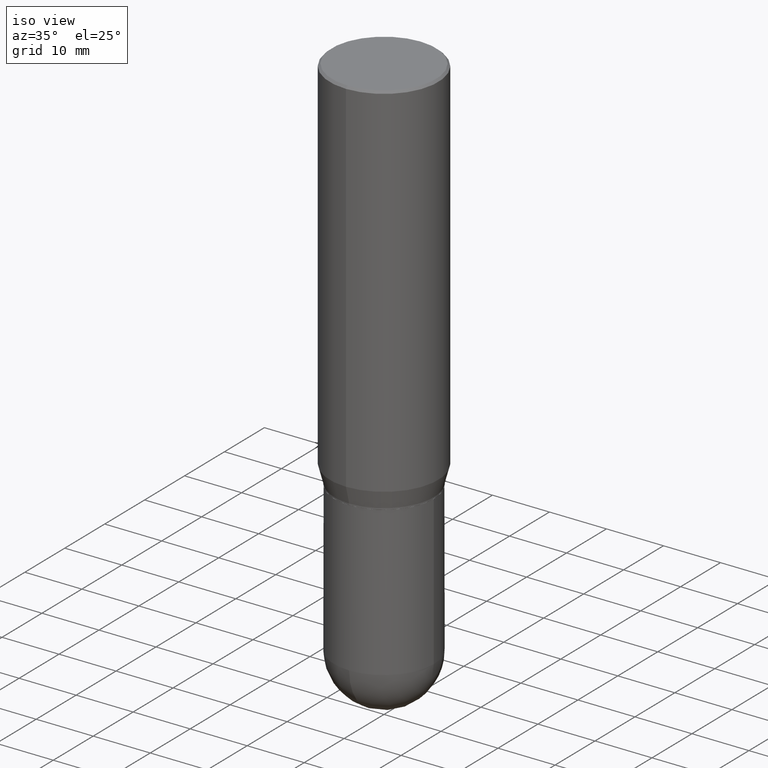
[diagram: clean part render]
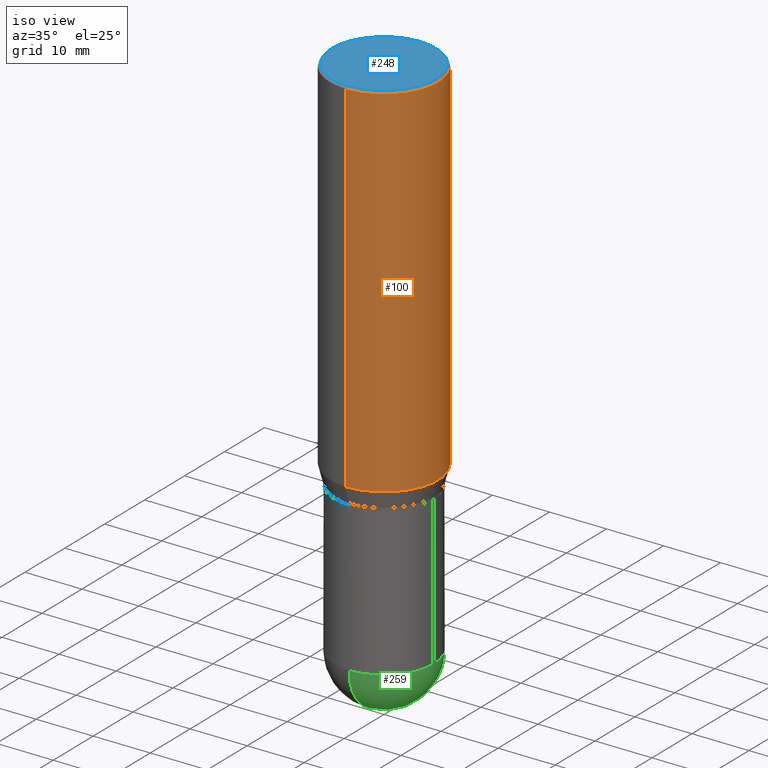
[diagram: same view with three faces highlighted in distinct colors, each labeled with its STEP entity id]
A machine part, iso view with three faces highlighted in distinct colors.
Their STEP definitions:

[orange] entity #100 — the highlighted cylindrical surface (partial cylindrical patch) has radius 9.525 mm, axis along (-0, 0, 1).
#3 = VERTEX_POINT ( 'NONE', #365 ) ;
#38 = VERTEX_POINT ( 'NONE', #349 ) ;
#49 = ORIENTED_EDGE ( 'NONE', *, *, #375, .F. ) ;
#62 = DIRECTION ( 'NONE',  ( -2.447249651675141421E-29, 3.488931066742028403E-15, 1.000000000000000000 ) ) ;
#96 = DIRECTION ( 'NONE',  ( -2.447249651675141421E-29, 3.488931066742028403E-15, 1.000000000000000000 ) ) ;
#98 = CARTESIAN_POINT ( 'NONE',  ( 2.664535259100437228E-15, 0.3749999999999998890, -0.01500000000000165437 ) ) ;
#100 = ADVANCED_FACE ( 'NONE', ( #358 ), #195, .T. ) ;
#107 = DIRECTION ( 'NONE',  ( -6.982962677686265922E-15, -1.000000000000000000, 3.488797541908735597E-15 ) ) ;
#122 = CARTESIAN_POINT ( 'NONE',  ( 6.114143462916222679E-29, -8.716652614368324829E-15, -2.498373412263474425 ) ) ;
#137 = AXIS2_PLACEMENT_3D ( 'NONE', #461, #185, #107 ) ;
#145 = EDGE_CURVE ( 'NONE', #3, #38, #496, .T. ) ;
#155 = CARTESIAN_POINT ( 'NONE',  ( 0.000000000000000000, 0.000000000000000000, 0.000000000000000000 ) ) ;
#159 = EDGE_LOOP ( 'NONE', ( #473, #191, #49, #512 ) ) ;
#160 = AXIS2_PLACEMENT_3D ( 'NONE', #122, #468, #360 ) ;
#176 = LINE ( 'NONE', #444, #309 ) ;
#185 = DIRECTION ( 'NONE',  ( -2.447249651675141421E-29, 3.488931066742028009E-15, 1.000000000000000000 ) ) ;
#187 = CARTESIAN_POINT ( 'NONE',  ( -2.618611004132350016E-15, -0.3750000000000000555, 1.308349150028260553E-15 ) ) ;
#191 = ORIENTED_EDGE ( 'NONE', *, *, #237, .T. ) ;
#195 = CYLINDRICAL_SURFACE ( 'NONE', #505, 0.3750000000000000555 ) ;
#237 = EDGE_CURVE ( 'NONE', #38, #321, #176, .T. ) ;
#239 = DIRECTION ( 'NONE',  ( -2.447249651675141421E-29, 3.488931066742028009E-15, 1.000000000000000000 ) ) ;
#249 = VERTEX_POINT ( 'NONE', #256 ) ;
#256 = CARTESIAN_POINT ( 'NONE',  ( -2.618611004132349622E-15, -0.3750000000000001110, -0.01499999999999903667 ) ) ;
#266 = LINE ( 'NONE', #187, #329 ) ;
#309 = VECTOR ( 'NONE', #96, 39.37007874015748143 ) ;
#321 = VERTEX_POINT ( 'NONE', #98 ) ;
#329 = VECTOR ( 'NONE', #62, 39.37007874015748143 ) ;
#349 = CARTESIAN_POINT ( 'NONE',  ( 2.664535259100436439E-15, 0.3749999999999912847, -2.498373412263475757 ) ) ;
#358 = FACE_OUTER_BOUND ( 'NONE', #159, .T. ) ;
#360 = DIRECTION ( 'NONE',  ( -6.982962677686265922E-15, -1.000000000000000000, 2.913971193241880372E-15 ) ) ;
#365 = CARTESIAN_POINT ( 'NONE',  ( -2.618611004132288880E-15, -0.3750000000000087708, -2.498373412263473536 ) ) ;
#375 = EDGE_CURVE ( 'NONE', #249, #321, #450, .T. ) ;
#444 = CARTESIAN_POINT ( 'NONE',  ( 2.664535259100375303E-15, 0.3750000000000000555, -1.308349150028260553E-15 ) ) ;
#446 = EDGE_CURVE ( 'NONE', #3, #249, #266, .T. ) ;
#450 = CIRCLE ( 'NONE', #137, 0.3750000000000000555 ) ;
#461 = CARTESIAN_POINT ( 'NONE',  ( 3.670874477512797068E-31, -5.233396600113162734E-17, -0.01500000000000034639 ) ) ;
#468 = DIRECTION ( 'NONE',  ( -2.447249651675141421E-29, 3.488931066742028009E-15, 1.000000000000000000 ) ) ;
#473 = ORIENTED_EDGE ( 'NONE', *, *, #145, .T. ) ;
#496 = CIRCLE ( 'NONE', #160, 0.3750000000000000555 ) ;
#505 = AXIS2_PLACEMENT_3D ( 'NONE', #155, #239, #508 ) ;
#508 = DIRECTION ( 'NONE',  ( -6.982962677686265922E-15, -1.000000000000000000, 3.488931066742027615E-15 ) ) ;
#512 = ORIENTED_EDGE ( 'NONE', *, *, #446, .F. ) ;

[blue] entity #248 — the highlighted planar face has unit normal (0, -0, -1).
#11 = DIRECTION ( 'NONE',  ( 2.447249651675140861E-29, -3.488931066742028403E-15, -1.000000000000000000 ) ) ;
#39 = CARTESIAN_POINT ( 'NONE',  ( -2.521233014181036950E-15, -0.3599999999999999867, 9.089902455763289193E-16 ) ) ;
#64 = DIRECTION ( 'NONE',  ( -2.447249651675141421E-29, 3.488931066742028009E-15, 1.000000000000000000 ) ) ;
#78 = AXIS2_PLACEMENT_3D ( 'NONE', #146, #64, #374 ) ;
#84 = VERTEX_POINT ( 'NONE', #39 ) ;
#97 = CARTESIAN_POINT ( 'NONE',  ( 2.566238784049702937E-15, 0.3599999999999999867, -1.603040122477931310E-15 ) ) ;
#146 = CARTESIAN_POINT ( 'NONE',  ( 8.492566597463105327E-45, -1.210746088695240353E-30, -3.470249384508011462E-16 ) ) ;
#161 = AXIS2_PLACEMENT_3D ( 'NONE', #308, #379, #376 ) ;
#248 = ADVANCED_FACE ( 'NONE', ( #488 ), #451, .F. ) ;
#250 = CARTESIAN_POINT ( 'NONE',  ( 2.513866563967055464E-15, 0.3599999999999999867, -1.429527653252530713E-15 ) ) ;
#272 = VERTEX_POINT ( 'NONE', #97 ) ;
#303 = CIRCLE ( 'NONE', #161, 0.3599999999999999867 ) ;
#308 = CARTESIAN_POINT ( 'NONE',  ( 8.492566597463105327E-45, -1.210746088695240353E-30, -3.470249384508011462E-16 ) ) ;
#334 = ORIENTED_EDGE ( 'NONE', *, *, #357, .T. ) ;
#357 = EDGE_CURVE ( 'NONE', #272, #84, #456, .T. ) ;
#369 = EDGE_CURVE ( 'NONE', #84, #272, #303, .T. ) ;
#374 = DIRECTION ( 'NONE',  ( -6.982962677686265133E-15, -1.000000000000000000, 3.488931066742028403E-15 ) ) ;
#376 = DIRECTION ( 'NONE',  ( -6.982962677686265133E-15, -1.000000000000000000, 3.488931066742028403E-15 ) ) ;
#379 = DIRECTION ( 'NONE',  ( -2.447249651675141421E-29, 3.488931066742028009E-15, 1.000000000000000000 ) ) ;
#410 = DIRECTION ( 'NONE',  ( 6.982962677686265922E-15, 1.000000000000000000, -3.488931066742028403E-15 ) ) ;
#412 = AXIS2_PLACEMENT_3D ( 'NONE', #250, #11, #410 ) ;
#437 = EDGE_LOOP ( 'NONE', ( #334, #466 ) ) ;
#451 = PLANE ( 'NONE',  #412 ) ;
#456 = CIRCLE ( 'NONE', #78, 0.3599999999999999867 ) ;
#466 = ORIENTED_EDGE ( 'NONE', *, *, #369, .T. ) ;
#488 = FACE_OUTER_BOUND ( 'NONE', #437, .T. ) ;

[green] entity #259 — the highlighted spherical surface has radius 8.7313 mm.
#26 = CARTESIAN_POINT ( 'NONE',  ( 0.3437500000000001665, -1.336582700025891149E-14, -3.656250000000000000 ) ) ;
#48 = SPHERICAL_SURFACE ( 'NONE', #343, 0.3437500000000002776 ) ;
#52 = AXIS2_PLACEMENT_3D ( 'NONE', #316, #397, #465 ) ;
#71 = EDGE_CURVE ( 'NONE', #282, #123, #301, .T. ) ;
#75 = DIRECTION ( 'NONE',  ( 1.000000000000000000, -6.982962677686265922E-15, 0.000000000000000000 ) ) ;
#119 = AXIS2_PLACEMENT_3D ( 'NONE', #133, #138, #452 ) ;
#123 = VERTEX_POINT ( 'NONE', #147 ) ;
#133 = CARTESIAN_POINT ( 'NONE',  ( 8.941245322614405682E-29, -1.276572864514525169E-14, -3.656250000000000000 ) ) ;
#135 = EDGE_CURVE ( 'NONE', #282, #314, #373, .T. ) ;
#138 = DIRECTION ( 'NONE',  ( -2.445468806185136597E-29, 3.491481338843145583E-15, 1.000000000000000000 ) ) ;
#147 = CARTESIAN_POINT ( 'NONE',  ( 2.400393420454744901E-15, 0.3437499999999875100, -3.656250000000001332 ) ) ;
#151 = EDGE_CURVE ( 'NONE', #314, #385, #261, .T. ) ;
#177 = DIRECTION ( 'NONE',  ( -1.000000000000000000, 6.982962677686265922E-15, -4.883557194083112340E-29 ) ) ;
#184 = ORIENTED_EDGE ( 'NONE', *, *, #151, .F. ) ;
#212 = FACE_OUTER_BOUND ( 'NONE', #434, .T. ) ;
#259 = ADVANCED_FACE ( 'NONE', ( #212 ), #48, .T. ) ;
#261 = CIRCLE ( 'NONE', #449, 0.3437500000000001665 ) ;
#264 = EDGE_CURVE ( 'NONE', #385, #123, #483, .T. ) ;
#265 = CARTESIAN_POINT ( 'NONE',  ( -2.442490654175256037E-15, -0.3437500000000129896, -3.656249999999999112 ) ) ;
#279 = DIRECTION ( 'NONE',  ( -2.445468806185136597E-29, 3.491481338843145583E-15, 1.000000000000000000 ) ) ;
#282 = VERTEX_POINT ( 'NONE', #292 ) ;
#287 = CARTESIAN_POINT ( 'NONE',  ( 8.997365610341803547E-29, -1.268536119895120754E-14, -3.656250000000000000 ) ) ;
#289 = ORIENTED_EDGE ( 'NONE', *, *, #71, .T. ) ;
#292 = CARTESIAN_POINT ( 'NONE',  ( 9.852693683063216430E-29, -1.386450929231819505E-14, -4.000000000000000888 ) ) ;
#299 = CARTESIAN_POINT ( 'NONE',  ( 8.997365610341803547E-29, -1.268536119895120754E-14, -3.656250000000000000 ) ) ;
#301 = CIRCLE ( 'NONE', #489, 0.3437500000000002776 ) ;
#313 = CARTESIAN_POINT ( 'NONE',  ( 8.941245322614405682E-29, -1.276572864514525169E-14, -3.656250000000000000 ) ) ;
#314 = VERTEX_POINT ( 'NONE', #265 ) ;
#316 = CARTESIAN_POINT ( 'NONE',  ( 8.997365610341803547E-29, -1.268536119895120754E-14, -3.656250000000000000 ) ) ;
#324 = ORIENTED_EDGE ( 'NONE', *, *, #264, .F. ) ;
#327 = DIRECTION ( 'NONE',  ( 6.982962677686265922E-15, 1.000000000000000000, -3.178877665354776508E-15 ) ) ;
#343 = AXIS2_PLACEMENT_3D ( 'NONE', #299, #177, #327 ) ;
#355 = DIRECTION ( 'NONE',  ( 6.982962677686265922E-15, 1.000000000000000000, 0.000000000000000000 ) ) ;
#373 = CIRCLE ( 'NONE', #52, 0.3437500000000002776 ) ;
#382 = ORIENTED_EDGE ( 'NONE', *, *, #135, .F. ) ;
#385 = VERTEX_POINT ( 'NONE', #26 ) ;
#397 = DIRECTION ( 'NONE',  ( -1.000000000000000000, 7.105427357601001070E-15, -4.926315508542082329E-29 ) ) ;
#429 = DIRECTION ( 'NONE',  ( 1.000000000000000000, -6.982962677686265922E-15, 4.883557194083112340E-29 ) ) ;
#434 = EDGE_LOOP ( 'NONE', ( #382, #289, #324, #184 ) ) ;
#449 = AXIS2_PLACEMENT_3D ( 'NONE', #313, #279, #75 ) ;
#452 = DIRECTION ( 'NONE',  ( 1.000000000000000000, -6.982962677686265922E-15, 0.000000000000000000 ) ) ;
#465 = DIRECTION ( 'NONE',  ( -7.105427357600999492E-15, -1.000000000000000000, 0.000000000000000000 ) ) ;
#483 = CIRCLE ( 'NONE', #119, 0.3437500000000001665 ) ;
#489 = AXIS2_PLACEMENT_3D ( 'NONE', #287, #429, #355 ) ;